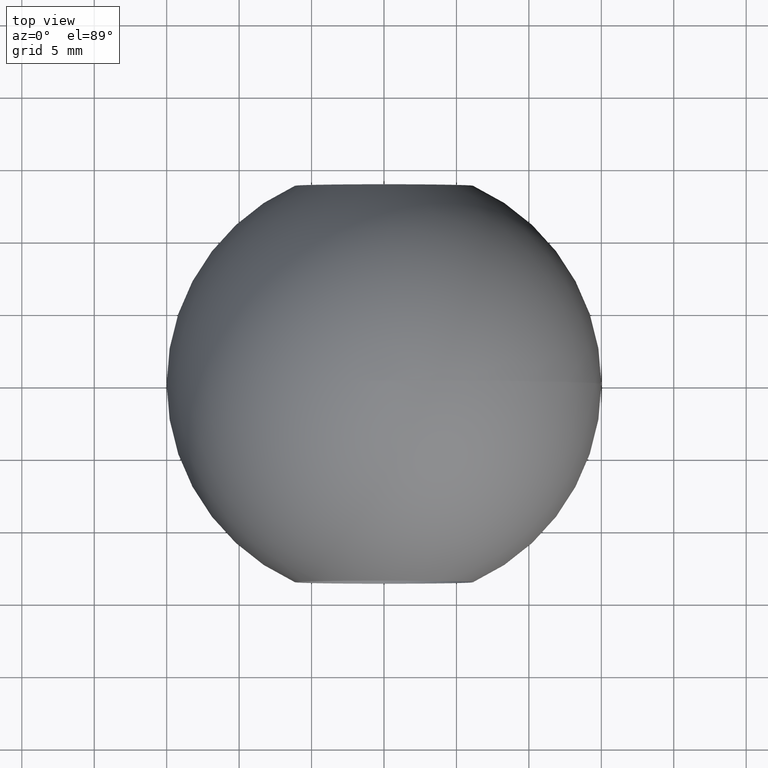
[diagram: clean part render]
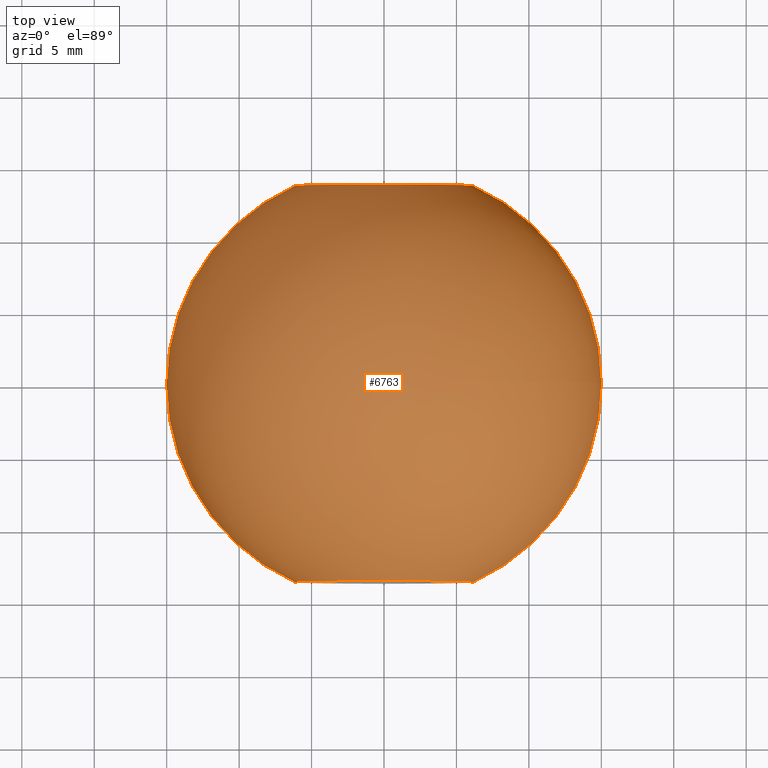
[diagram: same view with one face highlighted and labeled with its STEP entity id]
A machine part, top view. The second image highlights one B-rep face of the part: STEP entity #6763.
In plain terms, the highlighted spherical surface has radius 15 mm.
Its self-contained STEP definition (entity closure, byte-faithful):
#121 = CARTESIAN_POINT ( 'NONE',  ( -6.150000000000002100, -13.68128283458828400, -7.531577814756224000E-016 ) ) ;
#468 = DIRECTION ( 'NONE',  ( -1.000000000000000000, 0.0000000000000000000, -1.224646799147353200E-016 ) ) ;
#1101 = ORIENTED_EDGE ( 'NONE', *, *, #3746, .F. ) ;
#1226 = AXIS2_PLACEMENT_3D ( 'NONE', #10159, #5293, #468 ) ;
#1924 = AXIS2_PLACEMENT_3D ( 'NONE', #9222, #4374, #10045 ) ;
#2020 = DIRECTION ( 'NONE',  ( -0.0000000000000000000, 1.000000000000000000, -0.0000000000000000000 ) ) ;
#2412 = CIRCLE ( 'NONE', #1924, 6.150000000000002100 ) ;
#2585 = EDGE_CURVE ( 'NONE', #4395, #9997, #8808, .T. ) ;
#3070 = DIRECTION ( 'NONE',  ( 0.0000000000000000000, 0.0000000000000000000, 1.000000000000000000 ) ) ;
#3143 = VERTEX_POINT ( 'NONE', #6294 ) ;
#3208 = SPHERICAL_SURFACE ( 'NONE', #6639, 15.00000000000000200 ) ;
#3223 = DIRECTION ( 'NONE',  ( -0.0000000000000000000, 1.000000000000000000, -0.0000000000000000000 ) ) ;
#3746 = EDGE_CURVE ( 'NONE', #4336, #6031, #3995, .T. ) ;
#3995 = CIRCLE ( 'NONE', #1226, 15.00000000000000200 ) ;
#4209 = EDGE_LOOP ( 'NONE', ( #1101, #5973, #4348, #7142, #9810, #9770 ) ) ;
#4336 = VERTEX_POINT ( 'NONE', #121 ) ;
#4348 = ORIENTED_EDGE ( 'NONE', *, *, #7623, .T. ) ;
#4374 = DIRECTION ( 'NONE',  ( -0.0000000000000000000, 1.000000000000000000, -0.0000000000000000000 ) ) ;
#4395 = VERTEX_POINT ( 'NONE', #6042 ) ;
#4571 = CIRCLE ( 'NONE', #8849, 6.150000000000002100 ) ;
#4579 = EDGE_CURVE ( 'NONE', #6031, #4395, #8028, .T. ) ;
#4643 = DIRECTION ( 'NONE',  ( 1.000000000000000000, 0.0000000000000000000, 0.0000000000000000000 ) ) ;
#5149 = EDGE_CURVE ( 'NONE', #3143, #9997, #7377, .T. ) ;
#5293 = DIRECTION ( 'NONE',  ( 1.224646799147353200E-016, 0.0000000000000000000, -1.000000000000000000 ) ) ;
#5331 = CARTESIAN_POINT ( 'NONE',  ( 0.0000000000000000000, -13.68128283458828400, 6.150000000000002100 ) ) ;
#5759 = CARTESIAN_POINT ( 'NONE',  ( 6.150000000000002100, 13.68128283458828400, 0.0000000000000000000 ) ) ;
#5973 = ORIENTED_EDGE ( 'NONE', *, *, #6956, .T. ) ;
#6031 = VERTEX_POINT ( 'NONE', #8511 ) ;
#6042 = CARTESIAN_POINT ( 'NONE',  ( 0.0000000000000000000, 13.68128283458828400, 6.150000000000002100 ) ) ;
#6217 = CARTESIAN_POINT ( 'NONE',  ( 0.0000000000000000000, 0.0000000000000000000, 0.0000000000000000000 ) ) ;
#6294 = CARTESIAN_POINT ( 'NONE',  ( 6.150000000000002100, -13.68128283458828400, 0.0000000000000000000 ) ) ;
#6316 = CARTESIAN_POINT ( 'NONE',  ( 0.0000000000000000000, 13.68128283458828400, 0.0000000000000000000 ) ) ;
#6562 = AXIS2_PLACEMENT_3D ( 'NONE', #8059, #3223, #8872 ) ;
#6639 = AXIS2_PLACEMENT_3D ( 'NONE', #6217, #9495, #4643 ) ;
#6763 = ADVANCED_FACE ( 'NONE', ( #7238 ), #3208, .T. ) ;
#6834 = CARTESIAN_POINT ( 'NONE',  ( 0.0000000000000000000, -13.68128283458828400, 0.0000000000000000000 ) ) ;
#6935 = DIRECTION ( 'NONE',  ( 0.0000000000000000000, 0.0000000000000000000, 1.000000000000000000 ) ) ;
#6956 = EDGE_CURVE ( 'NONE', #4336, #8463, #4571, .T. ) ;
#6971 = DIRECTION ( 'NONE',  ( -0.0000000000000000000, 1.000000000000000000, -0.0000000000000000000 ) ) ;
#7142 = ORIENTED_EDGE ( 'NONE', *, *, #5149, .T. ) ;
#7238 = FACE_OUTER_BOUND ( 'NONE', #4209, .T. ) ;
#7377 = CIRCLE ( 'NONE', #8547, 15.00000000000000200 ) ;
#7623 = EDGE_CURVE ( 'NONE', #8463, #3143, #2412, .T. ) ;
#7676 = DIRECTION ( 'NONE',  ( 0.0000000000000000000, 0.0000000000000000000, 1.000000000000000000 ) ) ;
#7900 = CARTESIAN_POINT ( 'NONE',  ( 0.0000000000000000000, 0.0000000000000000000, 0.0000000000000000000 ) ) ;
#8028 = CIRCLE ( 'NONE', #6562, 6.150000000000002100 ) ;
#8059 = CARTESIAN_POINT ( 'NONE',  ( 0.0000000000000000000, 13.68128283458828400, 0.0000000000000000000 ) ) ;
#8463 = VERTEX_POINT ( 'NONE', #5331 ) ;
#8511 = CARTESIAN_POINT ( 'NONE',  ( -6.150000000000002100, 13.68128283458828400, -7.531577814756224000E-016 ) ) ;
#8547 = AXIS2_PLACEMENT_3D ( 'NONE', #7900, #3070, #8722 ) ;
#8722 = DIRECTION ( 'NONE',  ( 1.000000000000000000, 0.0000000000000000000, 0.0000000000000000000 ) ) ;
#8808 = CIRCLE ( 'NONE', #9198, 6.150000000000002100 ) ;
#8849 = AXIS2_PLACEMENT_3D ( 'NONE', #6834, #2020, #7676 ) ;
#8872 = DIRECTION ( 'NONE',  ( 0.0000000000000000000, 0.0000000000000000000, 1.000000000000000000 ) ) ;
#9198 = AXIS2_PLACEMENT_3D ( 'NONE', #6316, #6971, #6935 ) ;
#9222 = CARTESIAN_POINT ( 'NONE',  ( 0.0000000000000000000, -13.68128283458828400, 0.0000000000000000000 ) ) ;
#9495 = DIRECTION ( 'NONE',  ( 0.0000000000000000000, 0.0000000000000000000, -1.000000000000000000 ) ) ;
#9770 = ORIENTED_EDGE ( 'NONE', *, *, #4579, .F. ) ;
#9810 = ORIENTED_EDGE ( 'NONE', *, *, #2585, .F. ) ;
#9997 = VERTEX_POINT ( 'NONE', #5759 ) ;
#10045 = DIRECTION ( 'NONE',  ( 0.0000000000000000000, 0.0000000000000000000, 1.000000000000000000 ) ) ;
#10159 = CARTESIAN_POINT ( 'NONE',  ( 0.0000000000000000000, 0.0000000000000000000, 0.0000000000000000000 ) ) ;